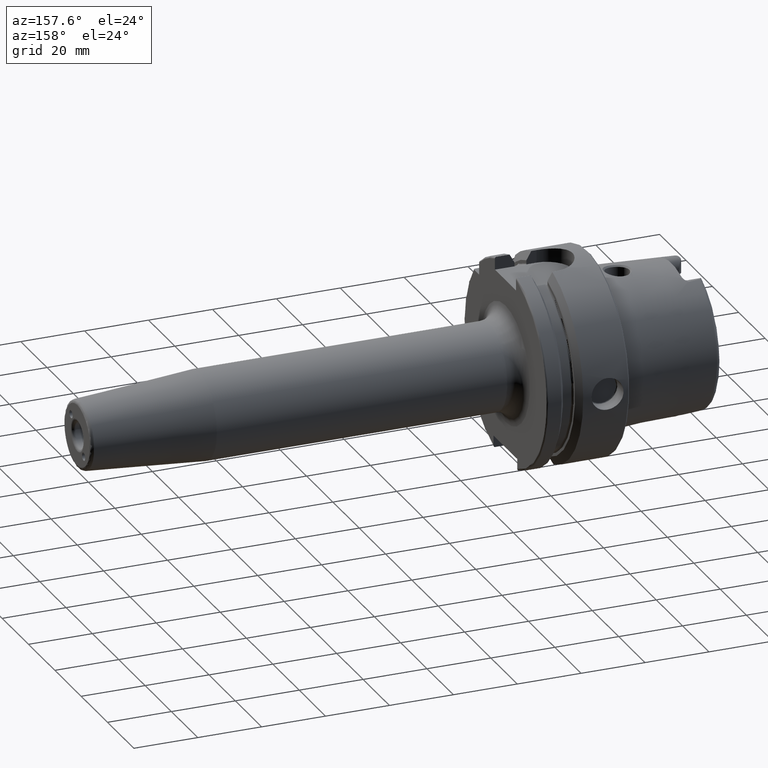
[diagram: clean part render]
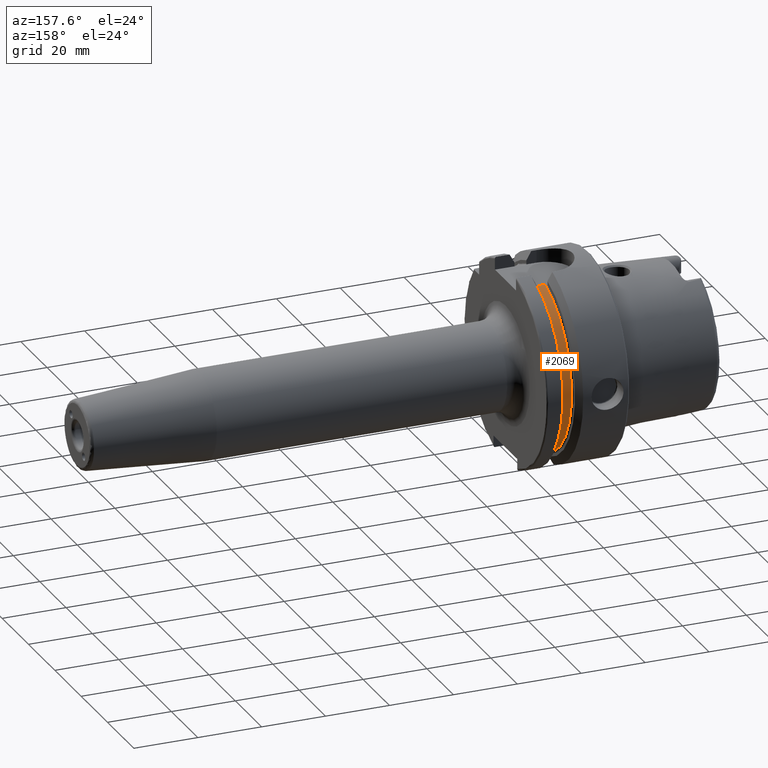
[diagram: same view with one face highlighted and labeled with its STEP entity id]
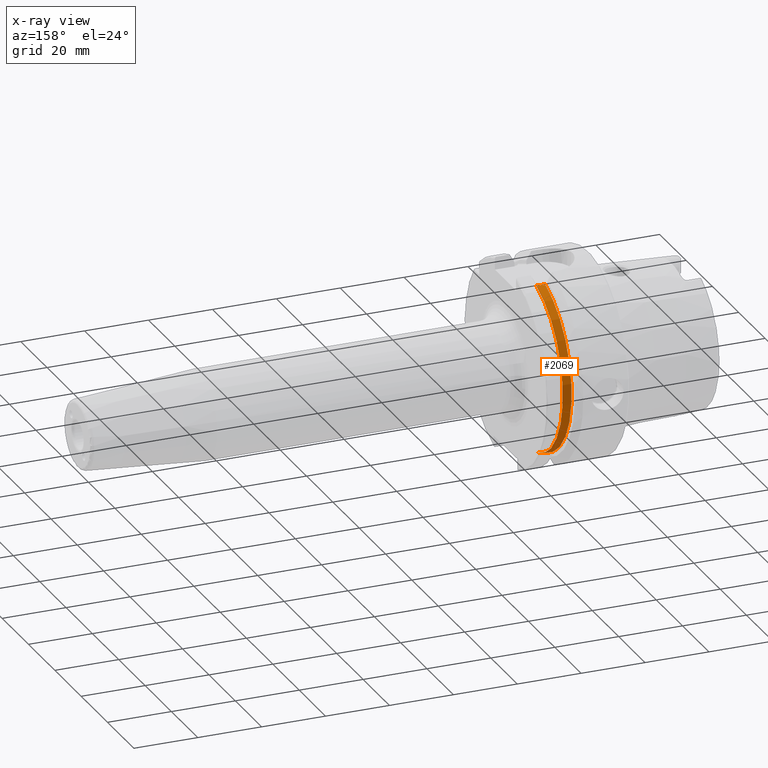
[diagram: x-ray of the same camera — body ghosted, the highlighted face saturated]
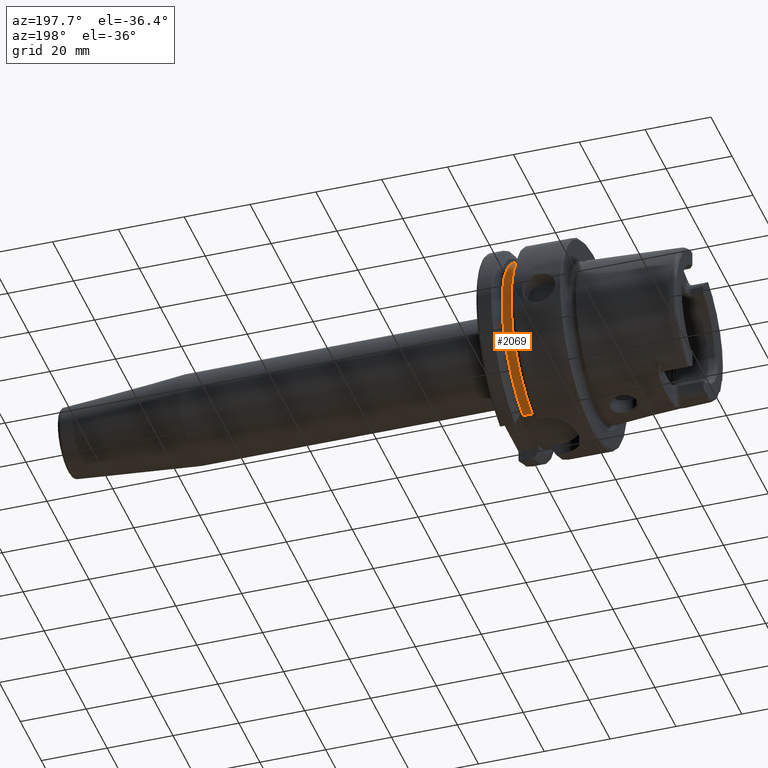
[diagram: same view with one face highlighted and labeled with its STEP entity id]
A machine part, auxiliary view. The second image highlights one B-rep face of the part: STEP entity #2069.
The next image is the same camera in x-ray: the body ghosted, the highlighted face saturated — about 0% of this face is hidden behind the body in this view.
A second angle (auxiliary view) of the same face is appended — the face is thin or edge-on in the first view.
In plain terms, the highlighted cylindrical surface (partial cylindrical patch) has radius 27.5 mm, axis along (1, 0, 0).
Its self-contained STEP definition (entity closure, byte-faithful):
#199=CYLINDRICAL_SURFACE('',#2297,27.5);
#281=FACE_OUTER_BOUND('',#410,.T.);
#410=EDGE_LOOP('',(#1707,#1708,#1709,#1710));
#541=LINE('',#4088,#651);
#552=LINE('',#4237,#662);
#651=VECTOR('',#2733,10.);
#662=VECTOR('',#2792,10.);
#759=CIRCLE('',#2286,27.5);
#765=CIRCLE('',#2298,27.5);
#965=VERTEX_POINT('',#4076);
#966=VERTEX_POINT('',#4087);
#979=VERTEX_POINT('',#4182);
#984=VERTEX_POINT('',#4236);
#1221=EDGE_CURVE('',#966,#965,#541,.T.);
#1245=EDGE_CURVE('',#965,#979,#759,.T.);
#1255=EDGE_CURVE('',#979,#984,#552,.T.);
#1256=EDGE_CURVE('',#966,#984,#765,.T.);
#1707=ORIENTED_EDGE('',*,*,#1221,.T.);
#1708=ORIENTED_EDGE('',*,*,#1245,.T.);
#1709=ORIENTED_EDGE('',*,*,#1255,.T.);
#1710=ORIENTED_EDGE('',*,*,#1256,.F.);
#2069=ADVANCED_FACE('',(#281),#199,.T.);
#2286=AXIS2_PLACEMENT_3D('',#4193,#2767,#2768);
#2297=AXIS2_PLACEMENT_3D('',#4235,#2790,#2791);
#2298=AXIS2_PLACEMENT_3D('',#4238,#2793,#2794);
#2733=DIRECTION('',(-1.,0.,0.));
#2767=DIRECTION('center_axis',(1.,0.,0.));
#2768=DIRECTION('ref_axis',(0.,0.,-1.));
#2790=DIRECTION('center_axis',(1.,0.,0.));
#2791=DIRECTION('ref_axis',(0.,1.,0.));
#2792=DIRECTION('',(1.,0.,0.));
#2793=DIRECTION('center_axis',(1.,0.,0.));
#2794=DIRECTION('ref_axis',(0.,0.,-1.));
#4076=CARTESIAN_POINT('',(16.625,7.34846922834952,-26.5));
#4087=CARTESIAN_POINT('',(19.375,7.34846922834952,-26.5));
#4088=CARTESIAN_POINT('',(18.,7.34846922834952,-26.5));
#4182=CARTESIAN_POINT('',(16.625,7.34846922834952,26.5));
#4193=CARTESIAN_POINT('Origin',(16.625,0.,0.));
#4235=CARTESIAN_POINT('Origin',(18.,0.,0.));
#4236=CARTESIAN_POINT('',(19.375,7.34846922834952,26.5));
#4237=CARTESIAN_POINT('',(18.,7.34846922834952,26.5));
#4238=CARTESIAN_POINT('Origin',(19.375,0.,0.));